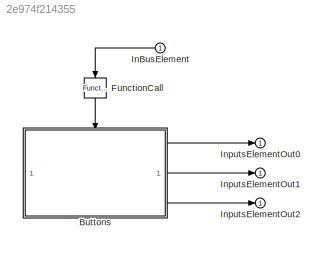
MODEL slx_2e974f214355
KIND model
CONFIG AbsTol = auto
CONFIG EnableMultiTasking = off
CONFIG FixedStep = SAMPLING_TIME
CONFIG MaxStep = auto
CONFIG MinStep = auto
CONFIG RelTol = 1e-3
CONFIG SampleTimeConstraint = Unconstrained
CONFIG SolverName = FixedStepAuto
CONFIG StartTime = 0.0
CONFIG StopTime = Inf
BLOCK [ModelReference] Buttons
  ModelNameDialog = Buttons.slx
  ModelReferenceVersion = 11.4
  TriggerPortName = call
  TriggerPortStatesWhenEnabling = held
  TriggerPortTriggerType = function-call
BLOCK [Reference] FunctionCall  REF=simulink/Ports &
Subsystems/Function-Call
Generator
  NameLocation = right
  SourceBlock = simulink/Ports &\nSubsystems/Function-Call\nGenerator
  SourceType = Function-Call Generator
BLOCK [Inport] InBusElement
BLOCK [Outport] InputsElementOut0
BLOCK [Outport] InputsElementOut1
BLOCK [Outport] InputsElementOut2
LINE Buttons:1 -> InputsElementOut0:1
LINE Buttons:2 -> InputsElementOut1:1
LINE Buttons:3 -> InputsElementOut2:1
LINE FunctionCall:1 -> Buttons:trigger
LINE InBusElement:1 -> FunctionCall:1
